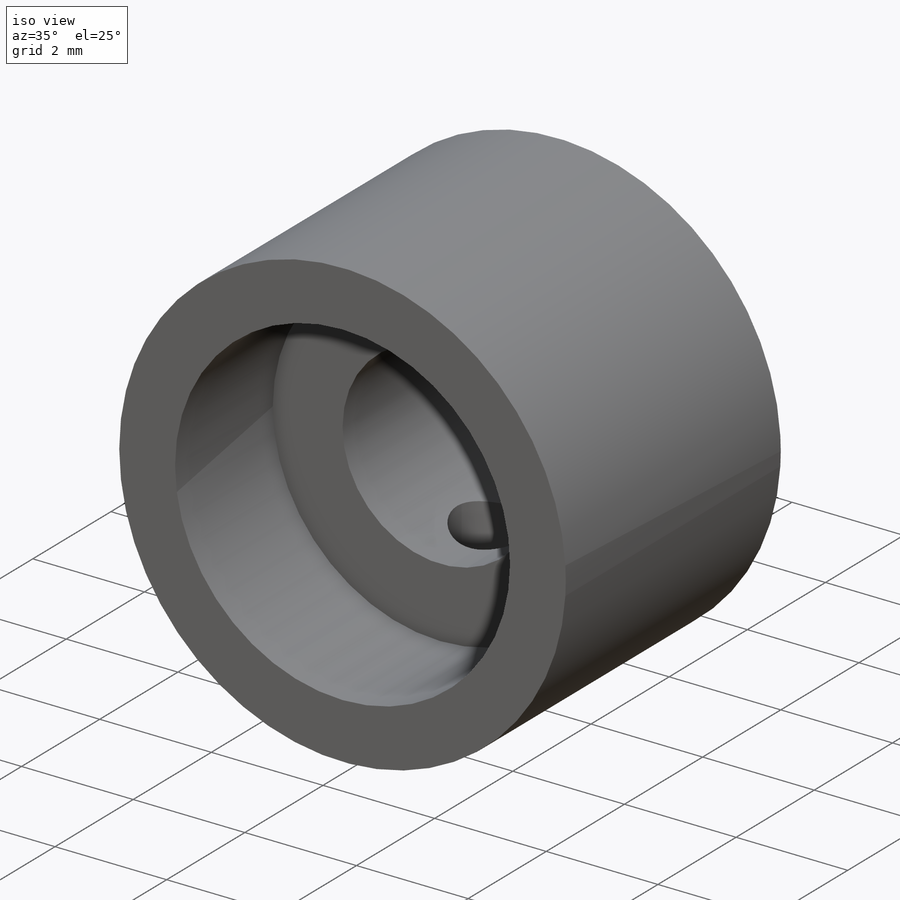
[diagram: iso view]
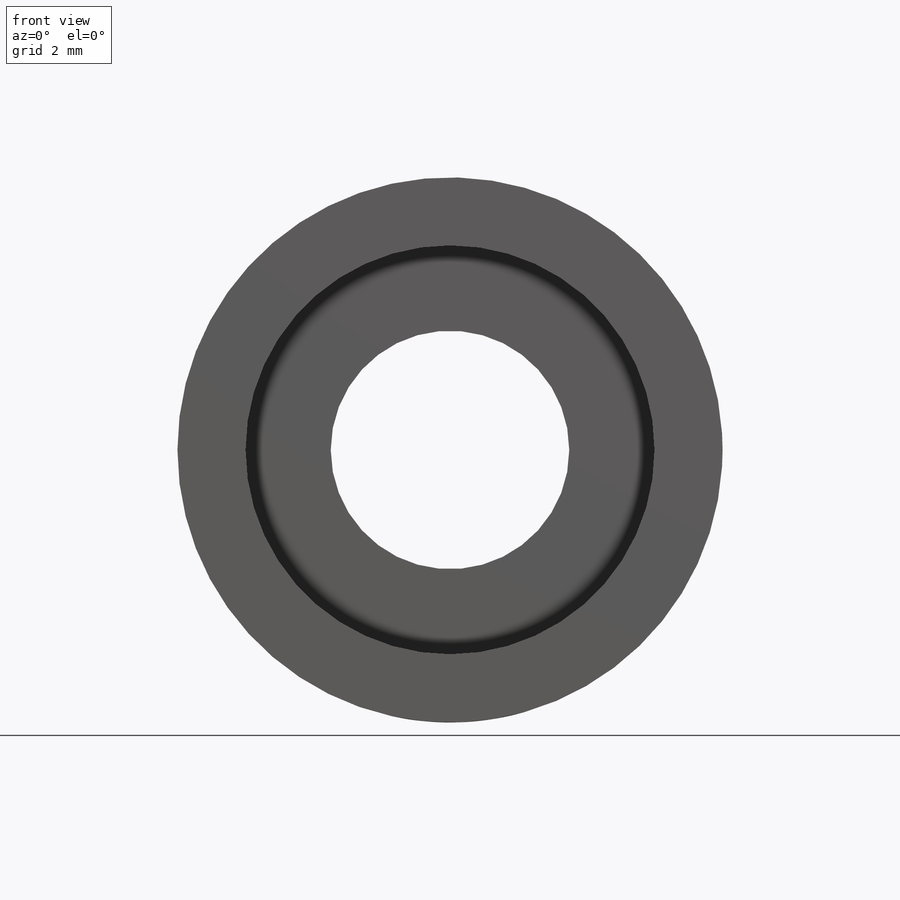
[diagram: front view]
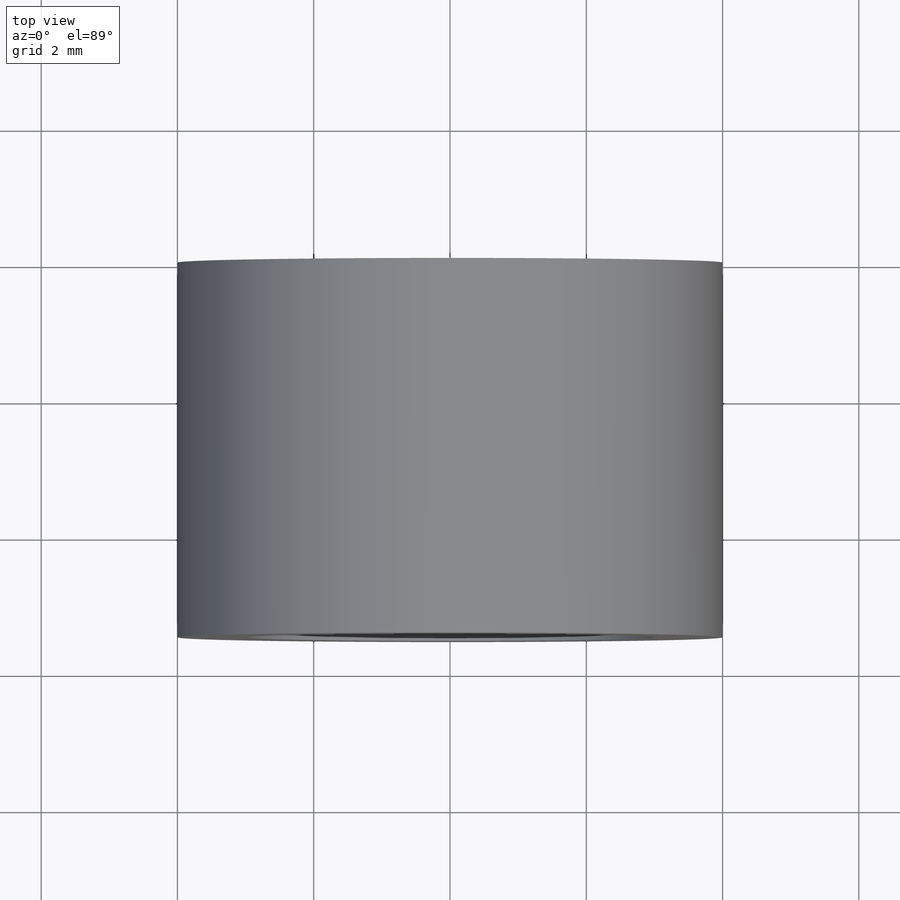
[diagram: top view]
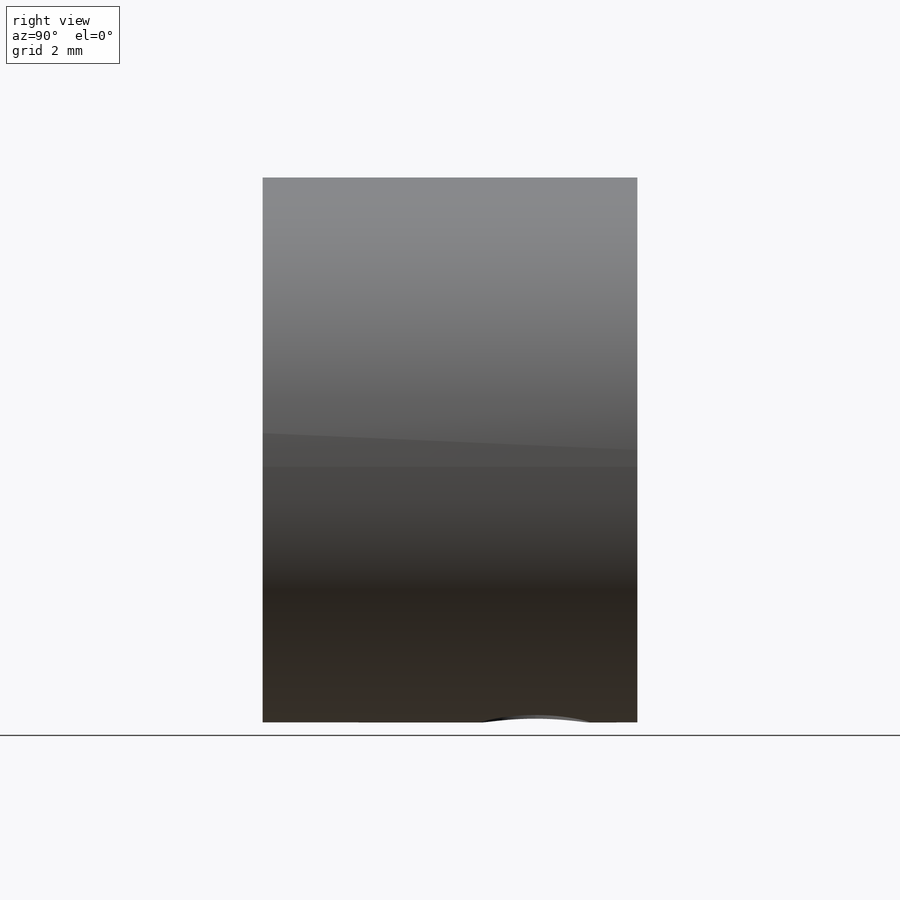
[diagram: right view]
SOLIDWORKS PART (.sldprt)
format: sldprt  version: not decoded by parser v0  size: 220,160 bytes
history: native  units: mm
features: sketch x4, extrude x2, material x1, hole x1 (+13 scaffold rows collapsed)
feature tree (21):
  scaffold x13  (default folders/planes/origin — collapsed)
  material  "Material <not specified>"
  sketch  "Sketch1"  dims[D1=3.5mm D2=2.0mm]
  extrude  "Boss-Extrude1"  Depth=3mm
  sketch  "Sketch2"  dims[c1.D1=~12.617459mm c1.D2=6.0mm c2.D1=1.0mm]
  extrude  "Boss-Extrude2"  Depth=2.5mm
  hole  "Tap Drill for M2x0.4 Tap1"  Diameter=1.6mm Depth=2.25mm
  sketch  "3DSketch4"  dims[D1=1.5mm]
  sketch  "Sketch6"  dims[hole-wizard template sketch: 60 standard entries collapsed; hole parameters kept: c18.Thru Hole Depth=2.25mm c18.D1=0.8mm c19.D1=114.3mm c20.D1=114.3mm c21.D1=114.3mm]
decode coverage: 7 of 7 modeling features carry decoded parameters
note: ~ marks probable driven/reference dimensions
note: suppression state not decoded; provenance and decode notes live in map.json
